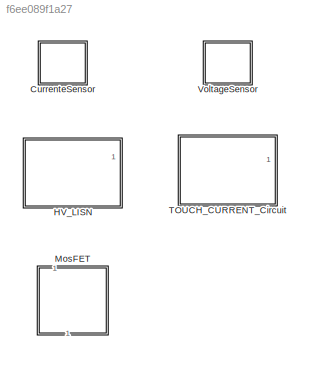
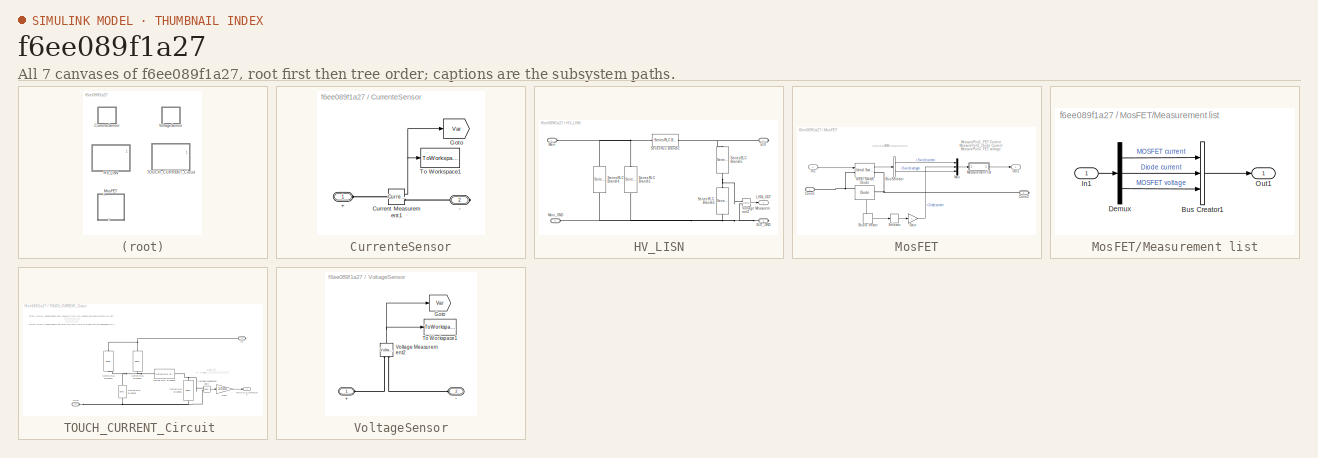
[diagram: thumbnail index - all 7 canvases of the model, root first then tree order]
MODEL slx_f6ee089f1a27
KIND library
CONFIG AbsTol = auto
CONFIG EnableMultiTasking = off
CONFIG FixedStep = auto
CONFIG MaxStep = auto
CONFIG MinStep = auto
CONFIG RelTol = 1e-3
CONFIG SampleTimeConstraint = Unconstrained
CONFIG Solver = VariableStepAuto
CONFIG SolverName = VariableStepAuto
CONFIG StartTime = 0.0
CONFIG StopTime = 10.0
BLOCK [SubSystem] CurrenteSensor
  AttributesFormatString = %<VariableName>
  Ports = [0, 0, 0, 0, 0, 1, 1]
  RequestExecContextInheritance = off
BLOCK [PMIOPort] CurrenteSensor/+
  Side = Left
BLOCK [PMIOPort] CurrenteSensor/-
  Port = 2
  Side = Right
BLOCK [Reference] CurrenteSensor/Current Measurement1  REF=powerlib/Measurements/Current Measurement
  Ports = [0, 1, 0, 0, 0, 1, 1]
  SourceBlock = powerlib/Measurements/Current Measurement
  SourceProductBaseCode = PS
  SourceProductName = Simscape Power Systems
  SourceType = Current Measurement
  UserDataPersistent = on
BLOCK [Goto] CurrenteSensor/Goto
  GotoTag = Var
  TagVisibility = global
BLOCK [ToWorkspace] CurrenteSensor/To Workspace1
  FixptAsFi = on
  MaxDataPoints = inf
  Ports = [1]
  SampleTime = sample_time
  Save2DSignal = 3-D array (concatenate along third dimension)
  VariableName = Var
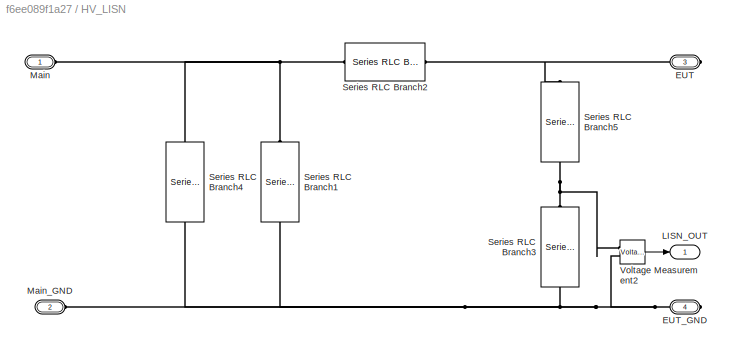
BLOCK [SubSystem] HV_LISN
  Ports = [0, 1, 0, 0, 0, 2, 2]
  RequestExecContextInheritance = off
BLOCK [PMIOPort] HV_LISN/EUT
  Port = 3
  Side = Right
BLOCK [PMIOPort] HV_LISN/EUT_GND
  Port = 4
  Side = Right
BLOCK [Outport] HV_LISN/LISN_OUT
  IconDisplay = Port number
BLOCK [PMIOPort] HV_LISN/Main
  Side = Left
BLOCK [PMIOPort] HV_LISN/Main_GND
  Port = 2
  Side = Left
BLOCK [Reference] HV_LISN/Series RLC Branch1  REF=powerlib/Elements/Series RLC Branch
  AttributesFormatString = C= %<Capacitance>  F
  Ports = [0, 0, 0, 0, 0, 1, 1]
  SourceBlock = powerlib/Elements/Series RLC Branch
  SourceProductBaseCode = PS
  SourceProductName = Simscape Power Systems
  SourceType = Series RLC Branch
BLOCK [Reference] HV_LISN/Series RLC Branch2  REF=powerlib/Elements/Series RLC Branch
  AttributesFormatString = L=%<Inductance> H
  Ports = [0, 0, 0, 0, 0, 1, 1]
  SourceBlock = powerlib/Elements/Series RLC Branch
  SourceProductBaseCode = PS
  SourceProductName = Simscape Power Systems
  SourceType = Series RLC Branch
BLOCK [Reference] HV_LISN/Series RLC Branch3  REF=powerlib/Elements/Series RLC Branch
  AttributesFormatString = R=%<Resistance> Ohm
  Ports = [0, 0, 0, 0, 0, 1, 1]
  SourceBlock = powerlib/Elements/Series RLC Branch
  SourceProductBaseCode = PS
  SourceProductName = Simscape Power Systems
  SourceType = Series RLC Branch
BLOCK [Reference] HV_LISN/Series RLC Branch4  REF=powerlib/Elements/Series RLC Branch
  AttributesFormatString = R=%<Resistance> Ohm
  Ports = [0, 0, 0, 0, 0, 1, 1]
  SourceBlock = powerlib/Elements/Series RLC Branch
  SourceProductBaseCode = PS
  SourceProductName = Simscape Power Systems
  SourceType = Series RLC Branch
BLOCK [Reference] HV_LISN/Series RLC Branch5  REF=powerlib/Elements/Series RLC Branch
  AttributesFormatString = C= %<Capacitance>  F
  Ports = [0, 0, 0, 0, 0, 1, 1]
  SourceBlock = powerlib/Elements/Series RLC Branch
  SourceProductBaseCode = PS
  SourceProductName = Simscape Power Systems
  SourceType = Series RLC Branch
BLOCK [Reference] HV_LISN/Voltage Measurement2  REF=powerlib/Measurements/Voltage Measurement
  Ports = [0, 1, 0, 0, 0, 2]
  SourceBlock = powerlib/Measurements/Voltage Measurement
  SourceProductBaseCode = PS
  SourceProductName = Simscape Power Systems
  SourceType = Voltage Measurement
  UserDataPersistent = on
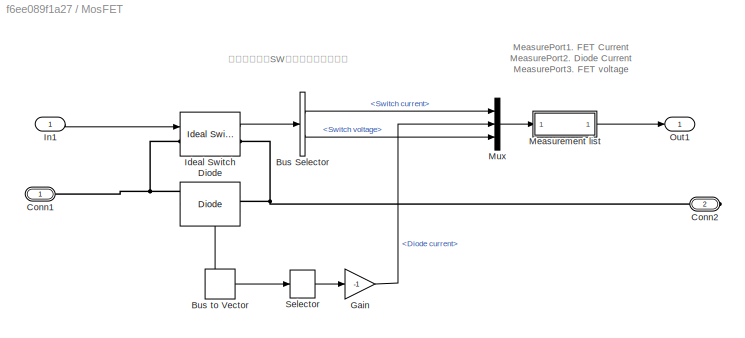
BLOCK [SubSystem] MosFET
  Ports = [1, 1, 0, 0, 0, 1, 1]
  RequestExecContextInheritance = off
BLOCK [BusSelector] MosFET/Bus Selector
  OutputAsBus = off
  OutputSignals = Switch current,Switch voltage
  Ports = [1, 2]
BLOCK [BusToVector] MosFET/Bus to Vector
BLOCK [PMIOPort] MosFET/Conn1
  Side = Left
BLOCK [PMIOPort] MosFET/Conn2
  Port = 2
  Side = Right
BLOCK [Reference] MosFET/Diode  REF=powerlib/Power
Electronics/Diode
  Ports = [0, 1, 0, 0, 0, 1, 1]
  SourceBlock = powerlib/Power\nElectronics/Diode
  SourceProductBaseCode = PS
  SourceProductName = Simscape Power Systems
  SourceType = Diode
BLOCK [Gain] MosFET/Gain
  Gain = -1
  OutDataTypeStr = Inherit: Inherit via internal rule
  ParamDataTypeStr = Inherit: Inherit via internal rule
  SaturateOnIntegerOverflow = off
BLOCK [Reference] MosFET/Ideal Switch  REF=powerlib/Power
Electronics/Ideal Switch
  Ports = [1, 1, 0, 0, 0, 1, 1]
  SourceBlock = powerlib/Power\nElectronics/Ideal Switch
  SourceProductBaseCode = PS
  SourceProductName = Simscape Power Systems
  SourceType = Ideal Switch
BLOCK [Inport] MosFET/In1
  IconDisplay = Port number
BLOCK [SubSystem] MosFET/Measurement list
  Ports = [1, 1]
  RequestExecContextInheritance = off
BLOCK [BusCreator] MosFET/Measurement list/Bus Creator1
  DisplayOption = bar
  InheritFromInputs = on
  Inputs = 3
  Ports = [3, 1]
BLOCK [Demux] MosFET/Measurement list/Demux
  DisplayOption = bar
  Outputs = [1,1,1]
  Ports = [1, 3]
BLOCK [Inport] MosFET/Measurement list/In1
  IconDisplay = Port number
BLOCK [Outport] MosFET/Measurement list/Out1
  IconDisplay = Port number
BLOCK [Mux] MosFET/Mux
  DisplayOption = bar
  Inputs = 3
  Ports = [3, 1]
BLOCK [Outport] MosFET/Out1
  IconDisplay = Port number
BLOCK [Selector] MosFET/Selector
  IndexOptions = Index vector (dialog)
  Indices = 1
  InputPortWidth = 2
  OutputSizes = 1
  Ports = [1, 1]
BLOCK [SubSystem] TOUCH_CURRENT_Circuit 
  Ports = [0, 1, 0, 0, 0, 1, 1]
  RequestExecContextInheritance = off
BLOCK [PMIOPort] TOUCH_CURRENT_Circuit /GND
  Side = Left
BLOCK [Gain] TOUCH_CURRENT_Circuit /Gain
  Gain = 1/500
  OutDataTypeStr = Inherit: Inherit via internal rule
  ParamDataTypeStr = Inherit: Inherit via internal rule
  SaturateOnIntegerOverflow = off
BLOCK [PMIOPort] TOUCH_CURRENT_Circuit /IN
  Port = 2
  Side = Right
BLOCK [Reference] TOUCH_CURRENT_Circuit /Series RLC Branch1  REF=powerlib/Elements/Series RLC Branch
  AttributesFormatString = C= %<Capacitance>  F
  Ports = [0, 0, 0, 0, 0, 1, 1]
  SourceBlock = powerlib/Elements/Series RLC Branch
  SourceProductBaseCode = PS
  SourceProductName = Simscape Power Systems
  SourceType = Series RLC Branch
BLOCK [Reference] TOUCH_CURRENT_Circuit /Series RLC Branch2  REF=powerlib/Elements/Series RLC Branch
  AttributesFormatString = R=%<Resistance> Ohm
  Ports = [0, 0, 0, 0, 0, 1, 1]
  SourceBlock = powerlib/Elements/Series RLC Branch
  SourceProductBaseCode = PS
  SourceProductName = Simscape Power Systems
  SourceType = Series RLC Branch
BLOCK [Reference] TOUCH_CURRENT_Circuit /Series RLC Branch4  REF=powerlib/Elements/Series RLC Branch
  AttributesFormatString = R=%<Resistance> Ohm
  Ports = [0, 0, 0, 0, 0, 1, 1]
  SourceBlock = powerlib/Elements/Series RLC Branch
  SourceProductBaseCode = PS
  SourceProductName = Simscape Power Systems
  SourceType = Series RLC Branch
BLOCK [Reference] TOUCH_CURRENT_Circuit /Series RLC Branch5  REF=powerlib/Elements/Series RLC Branch
  AttributesFormatString = C= %<Capacitance>  F
  Ports = [0, 0, 0, 0, 0, 1, 1]
  SourceBlock = powerlib/Elements/Series RLC Branch
  SourceProductBaseCode = PS
  SourceProductName = Simscape Power Systems
  SourceType = Series RLC Branch
BLOCK [Reference] TOUCH_CURRENT_Circuit /Series RLC Branch6  REF=powerlib/Elements/Series RLC Branch
  AttributesFormatString = R=%<Resistance> Ohm
  Ports = [0, 0, 0, 0, 0, 1, 1]
  SourceBlock = powerlib/Elements/Series RLC Branch
  SourceProductBaseCode = PS
  SourceProductName = Simscape Power Systems
  SourceType = Series RLC Branch
BLOCK [Outport] TOUCH_CURRENT_Circuit /TOUCH_CURRENT
  IconDisplay = Port number
BLOCK [Reference] TOUCH_CURRENT_Circuit /Voltage Measurement2  REF=powerlib/Measurements/Voltage Measurement
  Ports = [0, 1, 0, 0, 0, 2]
  SourceBlock = powerlib/Measurements/Voltage Measurement
  SourceProductBaseCode = PS
  SourceProductName = Simscape Power Systems
  SourceType = Voltage Measurement
  UserDataPersistent = on
BLOCK [SubSystem] VoltageSensor
  AttributesFormatString = %<VariableName>
  Ports = [0, 0, 0, 0, 0, 2]
  RequestExecContextInheritance = off
BLOCK [PMIOPort] VoltageSensor/+
  Side = Left
BLOCK [PMIOPort] VoltageSensor/-
  Port = 2
  Side = Left
BLOCK [Goto] VoltageSensor/Goto
  GotoTag = Var
  TagVisibility = global
BLOCK [ToWorkspace] VoltageSensor/To Workspace1
  FixptAsFi = on
  MaxDataPoints = inf
  Ports = [1]
  SampleTime = SampleTime
  Save2DSignal = 3-D array (concatenate along third dimension)
  VariableName = Var
BLOCK [Reference] VoltageSensor/Voltage Measurement2  REF=powerlib/Measurements/Voltage Measurement
  Ports = [0, 1, 0, 0, 0, 2]
  SourceBlock = powerlib/Measurements/Voltage Measurement
  SourceProductBaseCode = PS
  SourceProductName = Simscape Power Systems
  SourceType = Voltage Measurement
  UserDataPersistent = on
ANNOTATION MosFET: MeasurePort1. FET Current MeasurePort2. Diode Current MeasurePort3. FET voltage
ANNOTATION MosFET: ダイオードとSWの電流を分けて算出
ANNOTATION TOUCH_CURRENT_Circuit : V=RIから I= V/500 でタッチカレントに換算
ANNOTATION TOUCH_CURRENT_Circuit : https://www.researchgate.net/figure/Circuit-for-measuring-touch-current-for-Let-go-effects_fig3_322011486 より 妥当性は今後検証 以下に切り替え →https://www.researchgate.net/profile/Peter-Perkins-3/publication/299508095_IEC_60990_Touch_Current_circuits_Component_tolerance_analysis_Peter_E_Perkins_Convenor_IEC_TC_108WG5_'IEC_60990_Measurement_of_touch_current_'/links/56fc7f7408ae8239f6dc4a67/IEC-60990-Touch-Current-...<+120ch>
NET CurrenteSensor/Current Measurement1:1 -> CurrenteSensor/Goto:1, CurrenteSensor/To Workspace1:1
LINE HV_LISN/Voltage Measurement2:1 -> HV_LISN/LISN_OUT:1
LINE MosFET/Bus Selector:1 -> MosFET/Mux:1
LINE MosFET/Bus Selector:2 -> MosFET/Mux:3
LINE MosFET/Bus to Vector:1 -> MosFET/Selector:1
LINE MosFET/Diode:1 -> MosFET/Bus to Vector:1
LINE MosFET/Gain:1 -> MosFET/Mux:2
LINE MosFET/Ideal Switch:1 -> MosFET/Bus Selector:1
LINE MosFET/In1:1 -> MosFET/Ideal Switch:1
LINE MosFET/Measurement list/Bus Creator1:1 -> MosFET/Measurement list/Out1:1
LINE MosFET/Measurement list/Demux:1 -> MosFET/Measurement list/Bus Creator1:1
LINE MosFET/Measurement list/Demux:2 -> MosFET/Measurement list/Bus Creator1:2
LINE MosFET/Measurement list/Demux:3 -> MosFET/Measurement list/Bus Creator1:3
LINE MosFET/Measurement list/In1:1 -> MosFET/Measurement list/Demux:1
LINE MosFET/Measurement list:1 -> MosFET/Out1:1
LINE MosFET/Mux:1 -> MosFET/Measurement list:1
LINE MosFET/Selector:1 -> MosFET/Gain:1
LINE TOUCH_CURRENT_Circuit /Gain:1 -> TOUCH_CURRENT_Circuit /TOUCH_CURRENT:1
LINE TOUCH_CURRENT_Circuit /Voltage Measurement2:1 -> TOUCH_CURRENT_Circuit /Gain:1
NET VoltageSensor/Voltage Measurement2:1 -> VoltageSensor/Goto:1, VoltageSensor/To Workspace1:1
PLINE CurrenteSensor/+:RConn1 -- CurrenteSensor/Current Measurement1:LConn1
PLINE CurrenteSensor/-:RConn1 -- CurrenteSensor/Current Measurement1:RConn1
PNET net1: HV_LISN/EUT:RConn1 -- HV_LISN/Series RLC Branch2:RConn1 -- HV_LISN/Series RLC Branch5:LConn1
PNET net2: HV_LISN/EUT_GND:RConn1 -- HV_LISN/Main_GND:RConn1 -- HV_LISN/Series RLC Branch1:RConn1 -- HV_LISN/Series RLC Branch3:RConn1 -- HV_LISN/Series RLC Branch4:RConn1 -- HV_LISN/Voltage Measurement2:LConn2
PNET net3: HV_LISN/Main:RConn1 -- HV_LISN/Series RLC Branch1:LConn1 -- HV_LISN/Series RLC Branch2:LConn1 -- HV_LISN/Series RLC Branch4:LConn1
PNET net4: HV_LISN/Series RLC Branch3:LConn1 -- HV_LISN/Series RLC Branch5:RConn1 -- HV_LISN/Voltage Measurement2:LConn1
PNET net5: MosFET/Conn1:RConn1 -- MosFET/Diode:RConn1 -- MosFET/Ideal Switch:LConn1
PNET net6: MosFET/Conn2:RConn1 -- MosFET/Diode:LConn1 -- MosFET/Ideal Switch:RConn1
PNET net7: TOUCH_CURRENT_Circuit /GND:RConn1 -- TOUCH_CURRENT_Circuit /Series RLC Branch5:RConn1 -- TOUCH_CURRENT_Circuit /Series RLC Branch6:RConn1 -- TOUCH_CURRENT_Circuit /Voltage Measurement2:LConn2
PNET net8: TOUCH_CURRENT_Circuit /IN:RConn1 -- TOUCH_CURRENT_Circuit /Series RLC Branch1:LConn1 -- TOUCH_CURRENT_Circuit /Series RLC Branch4:LConn1
PNET net9: TOUCH_CURRENT_Circuit /Series RLC Branch1:RConn1 -- TOUCH_CURRENT_Circuit /Series RLC Branch2:LConn1 -- TOUCH_CURRENT_Circuit /Series RLC Branch4:RConn1 -- TOUCH_CURRENT_Circuit /Series RLC Branch6:LConn1
PNET net10: TOUCH_CURRENT_Circuit /Series RLC Branch2:RConn1 -- TOUCH_CURRENT_Circuit /Series RLC Branch5:LConn1 -- TOUCH_CURRENT_Circuit /Voltage Measurement2:LConn1
PLINE VoltageSensor/+:RConn1 -- VoltageSensor/Voltage Measurement2:LConn1
PLINE VoltageSensor/-:RConn1 -- VoltageSensor/Voltage Measurement2:LConn2
note: NET lines group one-source signal fan-out (src -> all destinations, sorted); 1:1 wires keep LINE; PNET lines group multi-terminal physical nets as a canonical sorted terminal list (undirected conserving connections); 2-terminal nets keep the pairwise PLINE form
